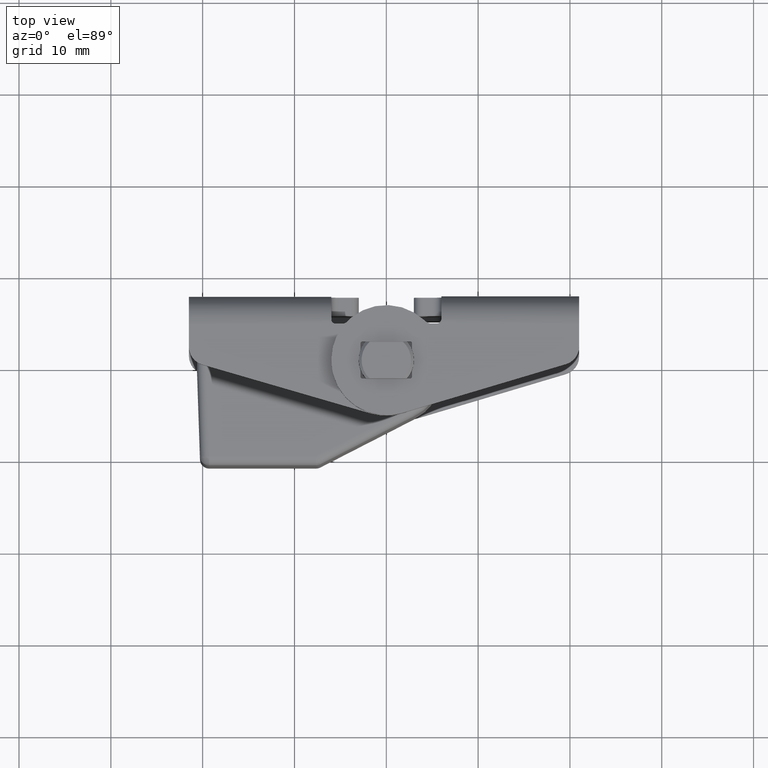
[diagram: clean part render]
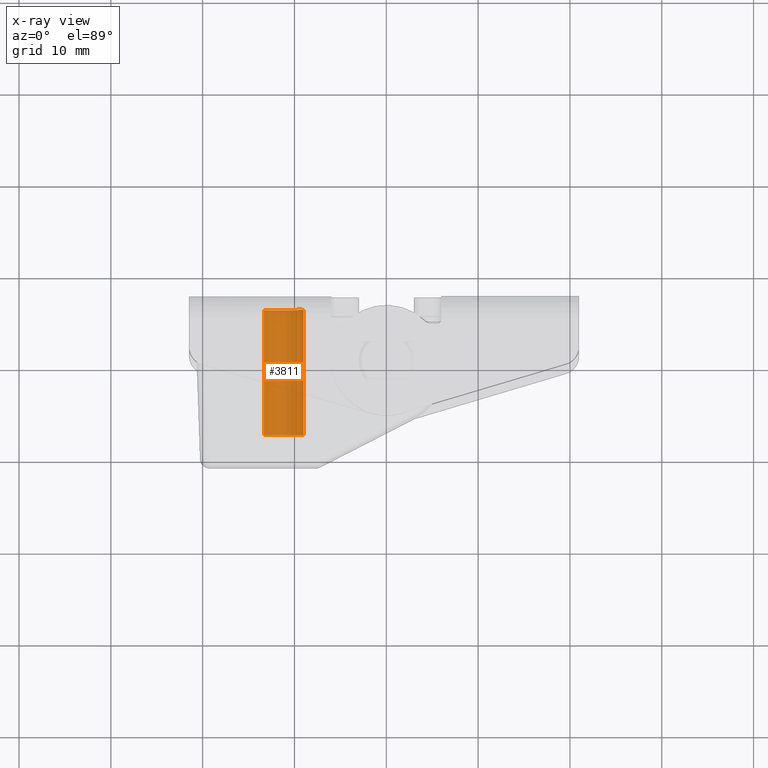
[diagram: x-ray — body ghosted, one internal face saturated and labeled with its STEP entity id]
A machine part, top view, then the same camera in x-ray: the body is ghosted and one INTERNAL B-rep face — a face not visible from any outside direction — is saturated and labeled: STEP entity #3811.
In plain terms, the highlighted face is a freeform B-spline surface patch.
Its self-contained STEP definition (entity closure, byte-faithful):
#3389=CARTESIAN_POINT('',(-11.500000000000000,5.999999999999890,28.949999999999999));
#3390=VERTEX_POINT('',#3389);
#3391=CARTESIAN_POINT('',(-9.000000000000169,5.999999999999890,31.450000912322231));
#3392=VERTEX_POINT('',#3391);
#3393=CARTESIAN_POINT('',(-11.500000000000000,5.999999999999890,28.949999999999999));
#3394=CARTESIAN_POINT('',(-11.295463289730479,5.999999999999885,28.949942757603470));
#3395=CARTESIAN_POINT('',(-10.968246716226909,5.999999999999903,28.990404809720751));
#3396=CARTESIAN_POINT('',(-10.500875456712190,5.999999999999882,29.144795817974899));
#3397=CARTESIAN_POINT('',(-10.047726503228080,5.999999999999902,29.386959407735119));
#3398=CARTESIAN_POINT('',(-9.576076614602073,5.999999999999898,29.803903924593289));
#3399=CARTESIAN_POINT('',(-9.241355873254259,5.999999999999847,30.325476478804109));
#3400=CARTESIAN_POINT('',(-9.044187726483861,5.999999999999932,30.887567395537470));
#3401=CARTESIAN_POINT('',(-8.999948557786150,5.999999999999872,31.245469392340269));
#3402=CARTESIAN_POINT('',(-9.000000000000169,5.999999999999890,31.450000912322231));
#3403=B_SPLINE_CURVE_WITH_KNOTS('',3,(#3393,#3394,#3395,#3396,#3397,#3398,#3399,#3400,#3401,#3402),.UNSPECIFIED.,.F.,.U.,(4,1,1,1,1,1,1,4),(0.000000087702983,0.613593324126445,0.981754231162069,1.472639562791588,2.147563832579995,2.853220189063629,3.313429505067657,3.927015971398625),.UNSPECIFIED.);
#3404=EDGE_CURVE('',#3390,#3392,#3403,.T.);
#3406=CARTESIAN_POINT('',(-13.343193458587640,6.000000000000563,29.761024271849099));
#3407=VERTEX_POINT('',#3406);
#3408=CARTESIAN_POINT('',(-13.343193458587640,6.000000000000563,29.761024271849099));
#3409=CARTESIAN_POINT('',(-13.233810771198421,6.000000000000514,29.641636695769900));
#3410=CARTESIAN_POINT('',(-12.967559963463620,6.000000000000444,29.402454766898671));
#3411=CARTESIAN_POINT('',(-12.495484621334990,6.000000000000264,29.133300685661400));
#3412=CARTESIAN_POINT('',(-11.985766131105249,6.000000000000068,28.980413941604400));
#3413=CARTESIAN_POINT('',(-11.651124186308300,5.999999999999920,28.949992310758379));
#3414=CARTESIAN_POINT('',(-11.500000000000000,5.999999999999890,28.949999999999999));
#3415=B_SPLINE_CURVE_WITH_KNOTS('',3,(#3408,#3409,#3410,#3411,#3412,#3413,#3414),.UNSPECIFIED.,.F.,.U.,(4,1,1,1,4),(0.000000026025648,0.485763526921969,1.068666887778608,1.619214797907806,2.072592995028447),.UNSPECIFIED.);
#3416=EDGE_CURVE('',#3407,#3390,#3415,.T.);
#3444=CARTESIAN_POINT('',(-9.656806541412360,6.000000000000563,33.138975728150903));
#3445=VERTEX_POINT('',#3444);
#3456=CARTESIAN_POINT('',(-9.000000000000169,5.999999999999890,31.450000912322231));
#3457=CARTESIAN_POINT('',(-8.999784915638108,5.999999999999981,31.739790223457948));
#3458=CARTESIAN_POINT('',(-9.076438482623084,6.000000000000201,32.174256826915510));
#3459=CARTESIAN_POINT('',(-9.337774420978912,6.000000000000376,32.737034746249890));
#3460=CARTESIAN_POINT('',(-9.532804371973066,6.000000000000535,33.003697899611893));
#3461=CARTESIAN_POINT('',(-9.656806541412360,6.000000000000563,33.138975728150903));
#3462=B_SPLINE_CURVE_WITH_KNOTS('',3,(#3456,#3457,#3458,#3459,#3460,#3461),.UNSPECIFIED.,.F.,.U.,(4,1,1,4),(0.000000019049749,0.869263219044070,1.303889442637539,1.854421956367643),.UNSPECIFIED.);
#3463=EDGE_CURVE('',#3392,#3445,#3462,.T.);
#3696=CARTESIAN_POINT('',(-13.343193459226690,-7.600000000000000,29.761024272546489));
#3697=VERTEX_POINT('',#3696);
#3698=CARTESIAN_POINT('',(-13.343193459226690,-7.600000000000000,29.761024272546489));
#3699=CARTESIAN_POINT('',(-13.343193458587640,6.000000000000563,29.761024271849099));
#3700=QUASI_UNIFORM_CURVE('',1,(#3698,#3699),.UNSPECIFIED.,.F.,.U.);
#3701=EDGE_CURVE('',#3697,#3407,#3700,.T.);
#3729=CARTESIAN_POINT('',(-9.656806540773317,-7.600000000000000,33.138975727453513));
#3730=VERTEX_POINT('',#3729);
#3741=CARTESIAN_POINT('',(-9.656806540773317,-7.600000000000000,33.138975727453513));
#3742=CARTESIAN_POINT('',(-9.656806541412360,6.000000000000563,33.138975728150903));
#3743=QUASI_UNIFORM_CURVE('',1,(#3741,#3742),.UNSPECIFIED.,.F.,.U.);
#3744=EDGE_CURVE('',#3730,#3445,#3743,.T.);
#3751=CARTESIAN_POINT('',(-9.656806657974691,-7.939999999999997,33.138975519039150));
#3752=CARTESIAN_POINT('',(-7.967831138935542,-7.939999999999997,31.295782177013837));
#3753=CARTESIAN_POINT('',(-9.811024480960850,-7.939999999999997,29.606806657974690));
#3754=CARTESIAN_POINT('',(-11.654217822986158,-7.939999999999997,27.917831138935544));
#3755=CARTESIAN_POINT('',(-13.343193342025311,-7.939999999999997,29.761024480960849));
#3756=CARTESIAN_POINT('',(-9.656806657974691,6.348499999999888,33.138975519039150));
#3757=CARTESIAN_POINT('',(-7.967831138935542,6.348499999999888,31.295782177013837));
#3758=CARTESIAN_POINT('',(-9.811024480960850,6.348499999999888,29.606806657974690));
#3759=CARTESIAN_POINT('',(-11.654217822986158,6.348499999999888,27.917831138935544));
#3760=CARTESIAN_POINT('',(-13.343193342025311,6.348499999999888,29.761024480960849));
#3768=(BOUNDED_SURFACE()B_SPLINE_SURFACE(2,1,((#3751,#3756),(#3752,#3757),(#3753,#3758),(#3754,#3759),(#3755,#3760)),.UNSPECIFIED.,.F.,.F.,.U.)B_SPLINE_SURFACE_WITH_KNOTS((3,2,3),(2,2),(0.0,4.142135623730953,8.284271247461906),(0.0,14.288499999999891),.UNSPECIFIED.)GEOMETRIC_REPRESENTATION_ITEM()RATIONAL_B_SPLINE_SURFACE(((1.0,1.0),(0.707106781186548,0.707106781186548),(1.0,1.0),(0.707106781186548,0.707106781186548),(1.0,1.0)))REPRESENTATION_ITEM('')SURFACE());
#3769=ORIENTED_EDGE('',*,*,#3416,.T.);
#3770=ORIENTED_EDGE('',*,*,#3404,.T.);
#3771=ORIENTED_EDGE('',*,*,#3463,.T.);
#3772=ORIENTED_EDGE('',*,*,#3744,.F.);
#3773=CARTESIAN_POINT('',(-9.000000000000169,-7.600000000000000,31.450000912322231));
#3774=VERTEX_POINT('',#3773);
#3775=CARTESIAN_POINT('',(-9.000000000000169,-7.600000000000000,31.450000912322231));
#3776=CARTESIAN_POINT('',(-8.999776795909021,-7.599999999999995,31.739788395626050));
#3777=CARTESIAN_POINT('',(-9.079845152270208,-7.600000000000000,32.193573942556412));
#3778=CARTESIAN_POINT('',(-9.347974621624719,-7.600000000000019,32.753879330217728));
#3779=CARTESIAN_POINT('',(-9.545862810859045,-7.600000000000000,33.017933121191113));
#3780=CARTESIAN_POINT('',(-9.656806540773317,-7.600000000000000,33.138975727453513));
#3781=B_SPLINE_CURVE_WITH_KNOTS('',3,(#3775,#3776,#3777,#3778,#3779,#3780),.UNSPECIFIED.,.F.,.U.,(4,1,1,4),(0.000000019049654,0.869263218600154,1.361840966068705,1.854421955421725),.UNSPECIFIED.);
#3782=EDGE_CURVE('',#3774,#3730,#3781,.T.);
#3783=ORIENTED_EDGE('',*,*,#3782,.F.);
#3784=CARTESIAN_POINT('',(-11.500000000000000,-7.600000000000000,28.949999999999999));
#3785=VERTEX_POINT('',#3784);
#3786=CARTESIAN_POINT('',(-11.500000000000000,-7.600000000000000,28.949999999999999));
#3787=CARTESIAN_POINT('',(-11.295463289730479,-7.599999999999995,28.949942757603459));
#3788=CARTESIAN_POINT('',(-10.968246716226909,-7.600000000000017,28.990404809720768));
#3789=CARTESIAN_POINT('',(-10.500875456712190,-7.599999999999990,29.144795817974881));
#3790=CARTESIAN_POINT('',(-10.047726503228070,-7.600000000000017,29.386959407735130));
#3791=CARTESIAN_POINT('',(-9.576076614602076,-7.600000000000008,29.803903924593289));
#3792=CARTESIAN_POINT('',(-9.241355873254259,-7.599999999999946,30.325476478804109));
#3793=CARTESIAN_POINT('',(-9.044187726483854,-7.600000000000059,30.887567395537459));
#3794=CARTESIAN_POINT('',(-8.999948557786153,-7.599999999999979,31.245469392340290));
#3795=CARTESIAN_POINT('',(-9.000000000000169,-7.600000000000000,31.450000912322231));
#3796=B_SPLINE_CURVE_WITH_KNOTS('',3,(#3786,#3787,#3788,#3789,#3790,#3791,#3792,#3793,#3794,#3795),.UNSPECIFIED.,.F.,.U.,(4,1,1,1,1,1,1,4),(0.000000087702983,0.613593324126445,0.981754231162069,1.472639562791588,2.147563832579995,2.853220189063629,3.313429505067657,3.927015971398625),.UNSPECIFIED.);
#3797=EDGE_CURVE('',#3785,#3774,#3796,.T.);
#3798=ORIENTED_EDGE('',*,*,#3797,.F.);
#3799=CARTESIAN_POINT('',(-13.343193459226690,-7.600000000000000,29.761024272546489));
#3800=CARTESIAN_POINT('',(-13.175529543166990,-7.599999999999983,29.577889084538370));
#3801=CARTESIAN_POINT('',(-12.861420297768539,-7.600000000000036,29.324099783678530));
#3802=CARTESIAN_POINT('',(-12.233901546208481,-7.599999999999976,29.028297909155562));
#3803=CARTESIAN_POINT('',(-11.791490501970220,-7.600000000000017,28.949805592473538));
#3804=CARTESIAN_POINT('',(-11.500000000000000,-7.600000000000000,28.949999999999999));
#3805=B_SPLINE_CURVE_WITH_KNOTS('',3,(#3799,#3800,#3801,#3802,#3803,#3804),.UNSPECIFIED.,.F.,.U.,(4,1,1,4),(0.000000026026016,0.744844212391771,1.198216987319552,2.072592995974357),.UNSPECIFIED.);
#3806=EDGE_CURVE('',#3697,#3785,#3805,.T.);
#3807=ORIENTED_EDGE('',*,*,#3806,.F.);
#3808=ORIENTED_EDGE('',*,*,#3701,.T.);
#3809=EDGE_LOOP('',(#3769,#3770,#3771,#3772,#3783,#3798,#3807,#3808));
#3810=FACE_OUTER_BOUND('',#3809,.T.);
#3811=ADVANCED_FACE('',(#3810),#3768,.T.);